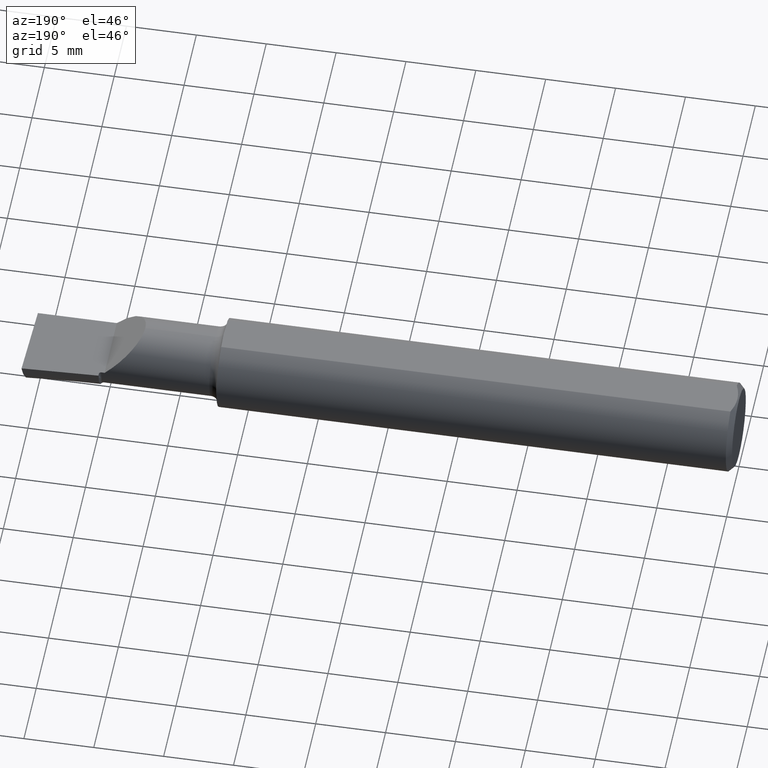
[diagram: clean part render]
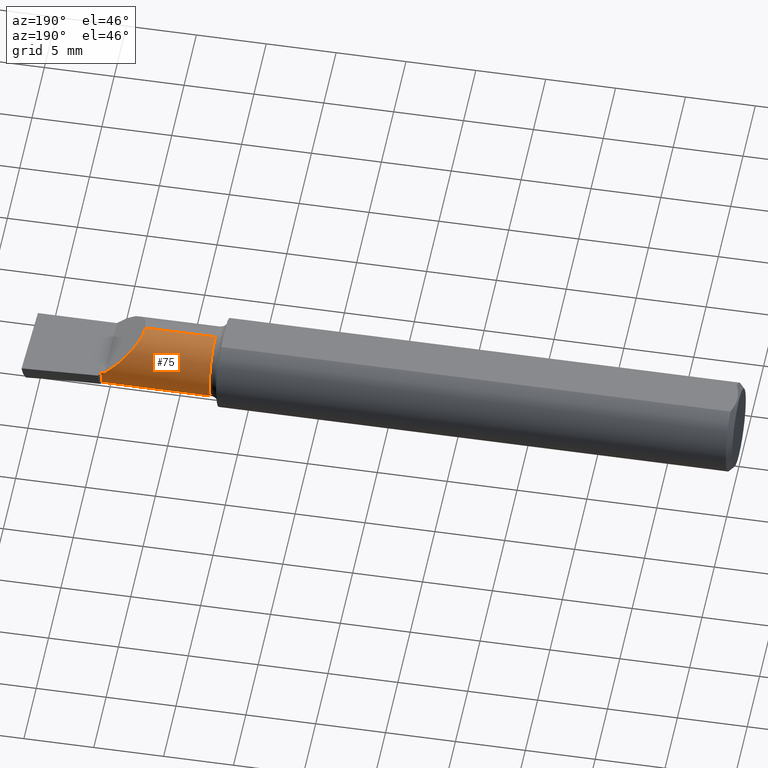
[diagram: same view with one face highlighted and labeled with its STEP entity id]
A machine part, auxiliary view. The second image highlights one B-rep face of the part: STEP entity #75.
In plain terms, the highlighted cylindrical surface (edge-blend (fillet) strip) has radius 2.4765 mm, axis along (-1, -0, -0).
Its self-contained STEP definition (entity closure, byte-faithful):
#3 = ORIENTED_EDGE ( 'NONE', *, *, #495, .F. ) ;
#5 = CARTESIAN_POINT ( 'NONE',  ( 3.021633225635175904E-31, 0.09750000000000000333, -7.773844898935373068E-16 ) ) ;
#14 = EDGE_CURVE ( 'NONE', #297, #116, #494, .T. ) ;
#37 = AXIS2_PLACEMENT_3D ( 'NONE', #506, #257, #552 ) ;
#53 = EDGE_CURVE ( 'NONE', #574, #428, #151, .T. ) ;
#65 = CARTESIAN_POINT ( 'NONE',  ( 1.474999999999999867, 0.000000000000000000, 0.09750000000000000333 ) ) ;
#75 = ADVANCED_FACE ( 'NONE', ( #531 ), #208, .T. ) ;
#92 = VERTEX_POINT ( 'NONE', #318 ) ;
#101 = EDGE_LOOP ( 'NONE', ( #182, #354, #3, #443, #217, #536 ) ) ;
#108 = CARTESIAN_POINT ( 'NONE',  ( 1.780000000000000027, 0.09750000000000000333, -7.773844898935373068E-16 ) ) ;
#116 = VERTEX_POINT ( 'NONE', #65 ) ;
#138 = AXIS2_PLACEMENT_3D ( 'NONE', #491, #489, #152 ) ;
#150 = LINE ( 'NONE', #247, #163 ) ;
#151 = LINE ( 'NONE', #5, #333 ) ;
#152 = DIRECTION ( 'NONE',  ( 0.000000000000000000, 0.000000000000000000, 1.000000000000000000 ) ) ;
#156 = CIRCLE ( 'NONE', #138, 0.09750000000000000333 ) ;
#163 = VECTOR ( 'NONE', #293, 39.37007874015748143 ) ;
#177 = CARTESIAN_POINT ( 'NONE',  ( 1.672500000000000764, 0.000000000000000000, 0.09750000000000000333 ) ) ;
#182 = ORIENTED_EDGE ( 'NONE', *, *, #426, .T. ) ;
#193 = CARTESIAN_POINT ( 'NONE',  ( 1.780000000000000027, 0.000000000000000000, 0.000000000000000000 ) ) ;
#208 = CYLINDRICAL_SURFACE ( 'NONE', #37, 0.09750000000000000333 ) ;
#217 = ORIENTED_EDGE ( 'NONE', *, *, #242, .T. ) ;
#239 = CARTESIAN_POINT ( 'NONE',  ( 0.000000000000000000, 0.000000000000000000, 0.09750000000000000333 ) ) ;
#241 = DIRECTION ( 'NONE',  ( -1.000000000000000000, -0.000000000000000000, -0.000000000000000000 ) ) ;
#242 = EDGE_CURVE ( 'NONE', #297, #574, #248, .T. ) ;
#247 = CARTESIAN_POINT ( 'NONE',  ( 0.000000000000000000, 1.194030629168669352E-17, -0.09750000000000000333 ) ) ;
#248 =( BOUNDED_CURVE ( )  B_SPLINE_CURVE ( 3, ( #177, #285, #415, #420 ),
 .UNSPECIFIED., .F., .T. ) 
 B_SPLINE_CURVE_WITH_KNOTS ( ( 4, 4 ),
 ( 0.000000000000000000, 1.570796326794897002 ),
 .UNSPECIFIED. ) 
 CURVE ( )  GEOMETRIC_REPRESENTATION_ITEM ( )  RATIONAL_B_SPLINE_CURVE ( ( 1.000000000000000000, 0.8047378541243649375, 0.8047378541243649375, 1.000000000000000000 ) ) 
 REPRESENTATION_ITEM ( '' )  );
#251 = VERTEX_POINT ( 'NONE', #386 ) ;
#257 = DIRECTION ( 'NONE',  ( -1.000000000000000000, -0.000000000000000000, -0.000000000000000000 ) ) ;
#285 = CARTESIAN_POINT ( 'NONE',  ( 1.672500000000000320, 0.05711417766862324219, 0.09750000000000003109 ) ) ;
#293 = DIRECTION ( 'NONE',  ( -1.000000000000000000, -0.000000000000000000, -0.000000000000000000 ) ) ;
#297 = VERTEX_POINT ( 'NONE', #510 ) ;
#301 = AXIS2_PLACEMENT_3D ( 'NONE', #193, #395, #303 ) ;
#303 = DIRECTION ( 'NONE',  ( 0.000000000000000000, 0.000000000000000000, 1.000000000000000000 ) ) ;
#318 = CARTESIAN_POINT ( 'NONE',  ( 1.780000000000000027, 3.722989503933402437E-16, -0.09749999999999996170 ) ) ;
#333 = VECTOR ( 'NONE', #445, 39.37007874015748143 ) ;
#354 = ORIENTED_EDGE ( 'NONE', *, *, #522, .T. ) ;
#386 = CARTESIAN_POINT ( 'NONE',  ( 1.474999999999999867, 1.347111479062088626E-17, -0.09750000000000000333 ) ) ;
#395 = DIRECTION ( 'NONE',  ( -1.000000000000000000, -0.000000000000000000, -0.000000000000000000 ) ) ;
#415 = CARTESIAN_POINT ( 'NONE',  ( 1.712885822331376762, 0.09750000000000003109, 0.05711417766862324219 ) ) ;
#420 = CARTESIAN_POINT ( 'NONE',  ( 1.770000000000000240, 0.09750000000000025313, -8.939921633775677106E-17 ) ) ;
#426 = EDGE_CURVE ( 'NONE', #428, #92, #571, .T. ) ;
#428 = VERTEX_POINT ( 'NONE', #108 ) ;
#443 = ORIENTED_EDGE ( 'NONE', *, *, #14, .F. ) ;
#445 = DIRECTION ( 'NONE',  ( 1.000000000000000000, 0.000000000000000000, 0.000000000000000000 ) ) ;
#489 = DIRECTION ( 'NONE',  ( -1.000000000000000000, -0.000000000000000000, -0.000000000000000000 ) ) ;
#491 = CARTESIAN_POINT ( 'NONE',  ( 1.474999999999999867, 0.000000000000000000, 0.000000000000000000 ) ) ;
#494 = LINE ( 'NONE', #239, #537 ) ;
#495 = EDGE_CURVE ( 'NONE', #116, #251, #156, .T. ) ;
#506 = CARTESIAN_POINT ( 'NONE',  ( 0.000000000000000000, 0.000000000000000000, 0.000000000000000000 ) ) ;
#510 = CARTESIAN_POINT ( 'NONE',  ( 1.672500000000000764, 0.000000000000000000, 0.09750000000000000333 ) ) ;
#522 = EDGE_CURVE ( 'NONE', #92, #251, #150, .T. ) ;
#531 = FACE_OUTER_BOUND ( 'NONE', #101, .T. ) ;
#536 = ORIENTED_EDGE ( 'NONE', *, *, #53, .T. ) ;
#537 = VECTOR ( 'NONE', #241, 39.37007874015748143 ) ;
#552 = DIRECTION ( 'NONE',  ( 0.000000000000000000, 0.000000000000000000, 1.000000000000000000 ) ) ;
#571 = CIRCLE ( 'NONE', #301, 0.09750000000000000333 ) ;
#574 = VERTEX_POINT ( 'NONE', #604 ) ;
#604 = CARTESIAN_POINT ( 'NONE',  ( 1.770000000000000240, 0.09750000000000025313, -8.939921633775677106E-17 ) ) ;